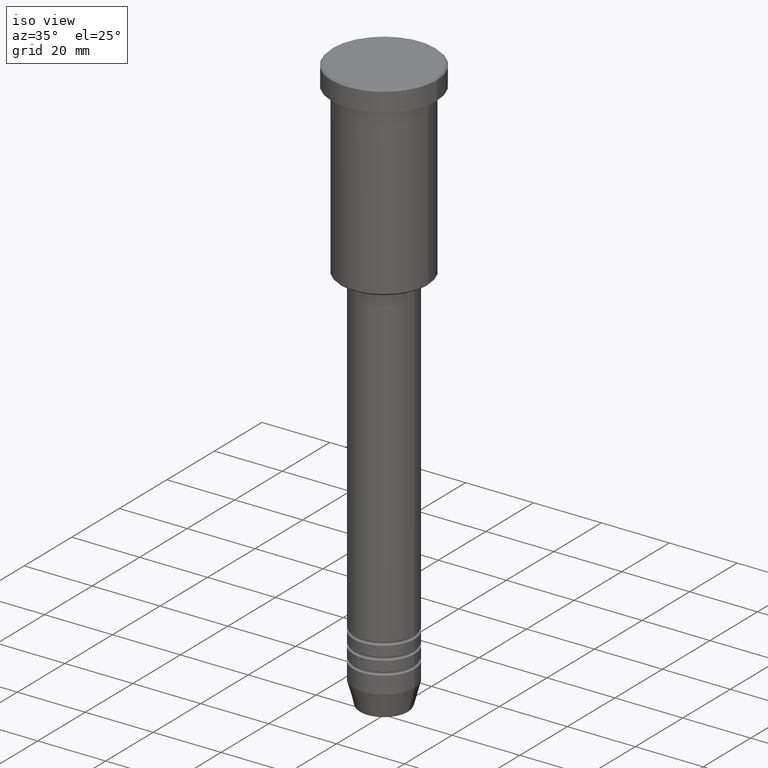
[diagram: clean part render]
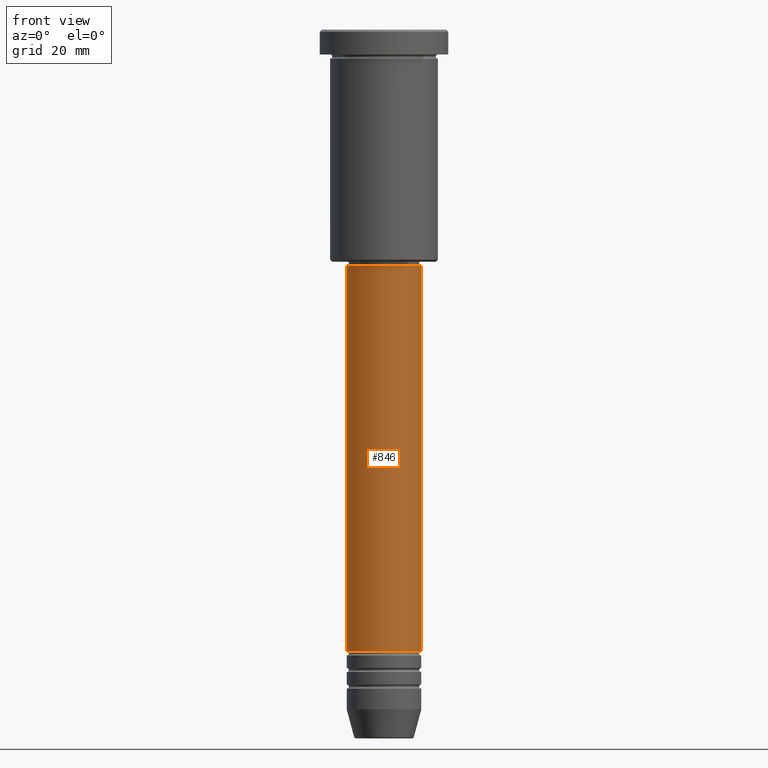
[diagram: tour spotlight — one face highlighted and labeled with its STEP entity id]
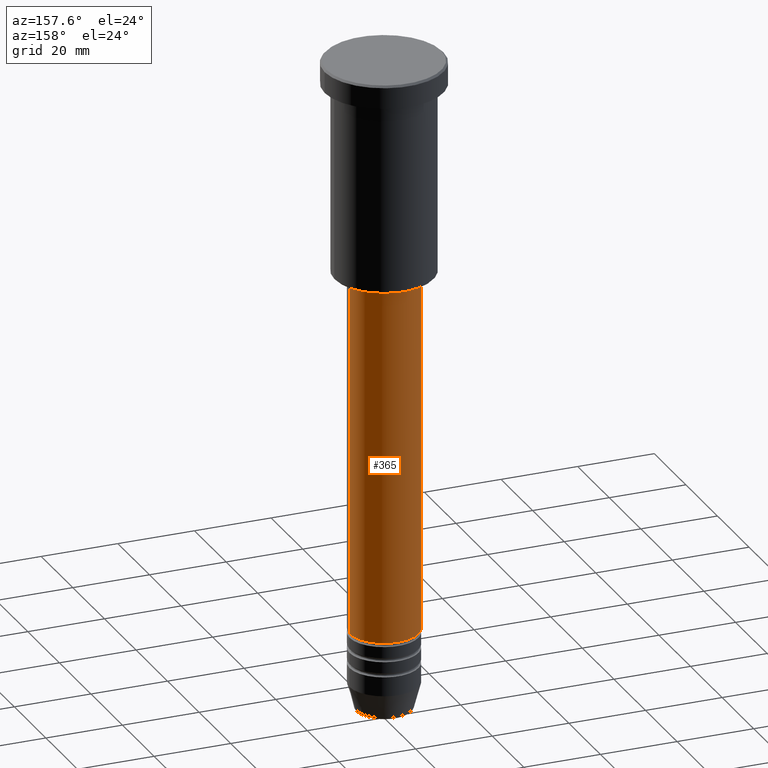
[diagram: tour spotlight — one face highlighted and labeled with its STEP entity id]
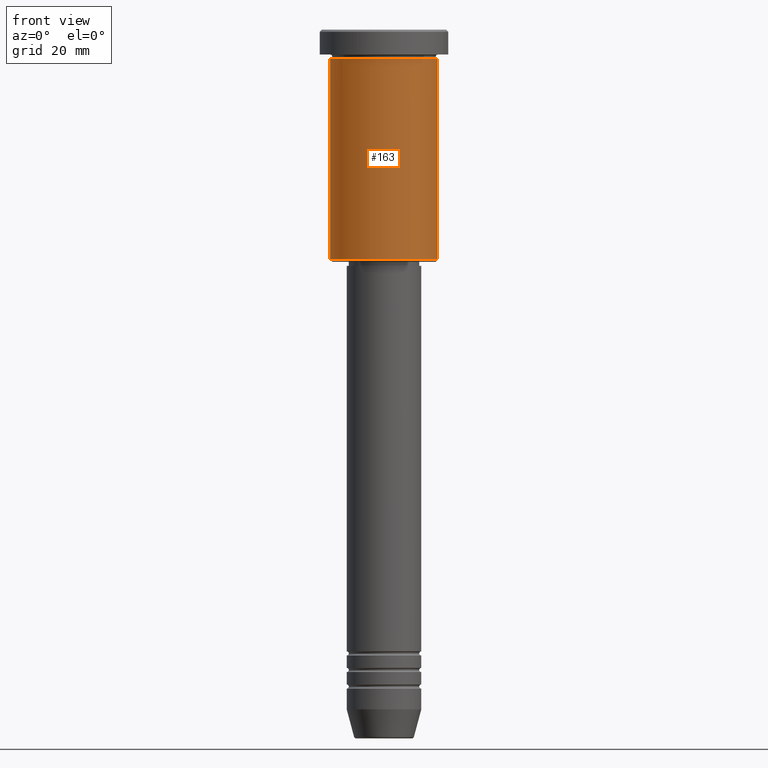
[diagram: tour spotlight — one face highlighted and labeled with its STEP entity id]
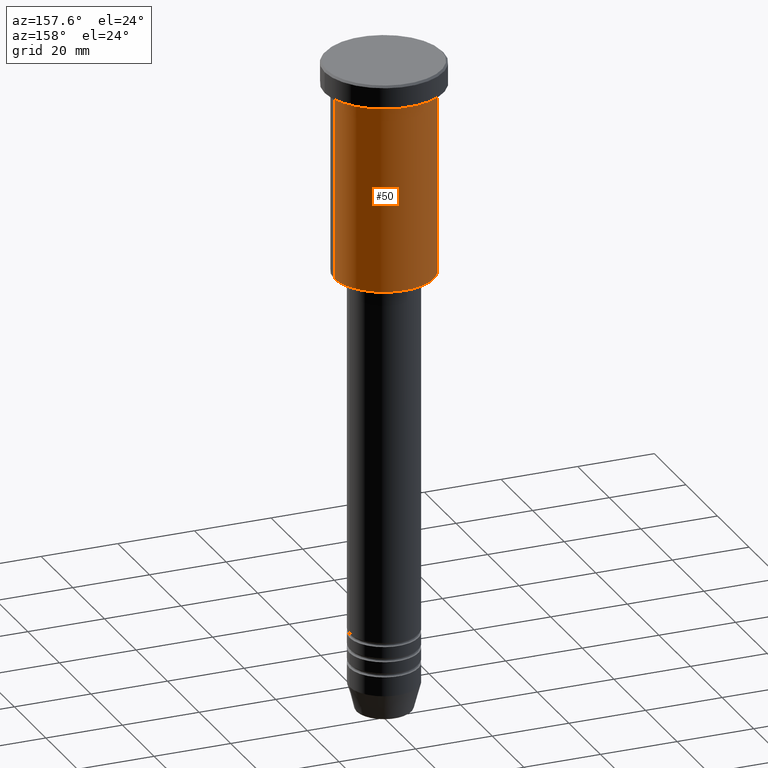
[diagram: tour spotlight — one face highlighted and labeled with its STEP entity id]
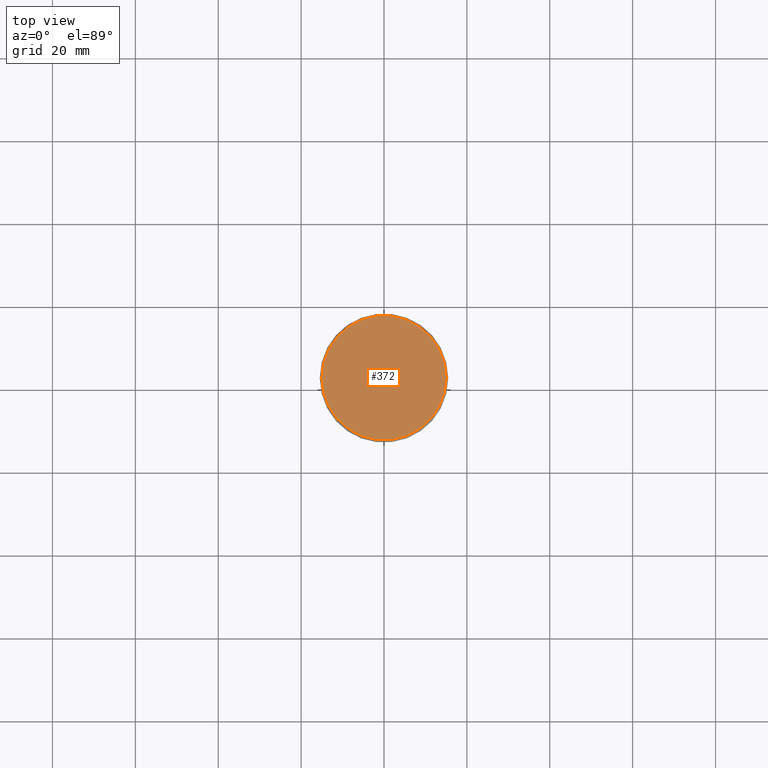
[diagram: tour spotlight — one face highlighted and labeled with its STEP entity id]
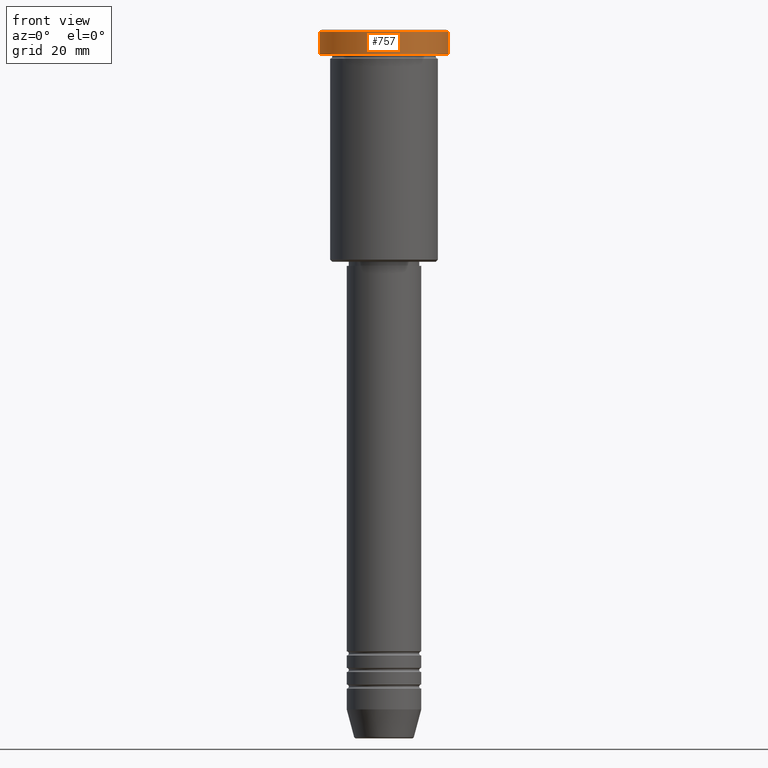
[diagram: tour spotlight — one face highlighted and labeled with its STEP entity id]
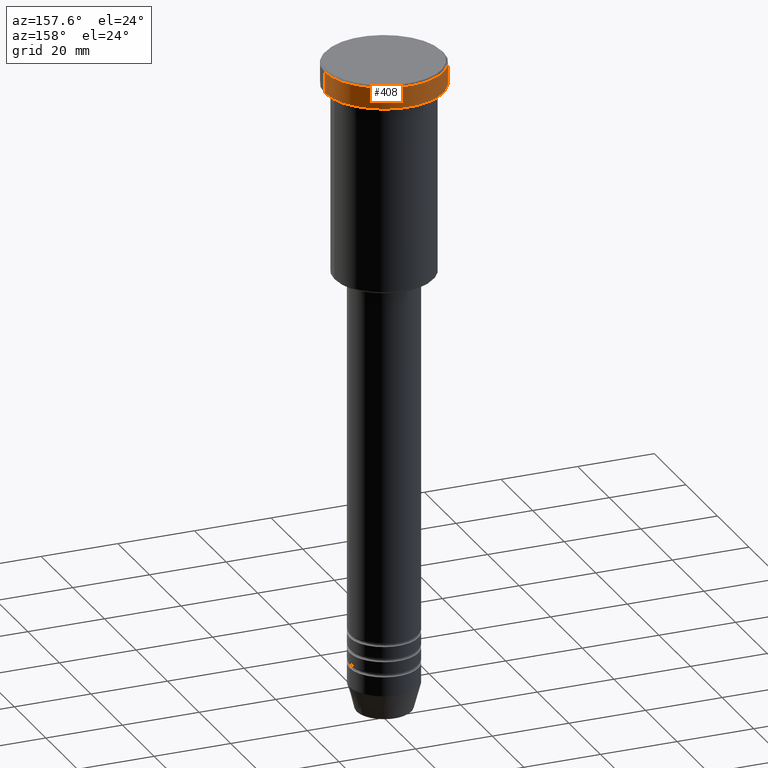
[diagram: tour spotlight — one face highlighted and labeled with its STEP entity id]
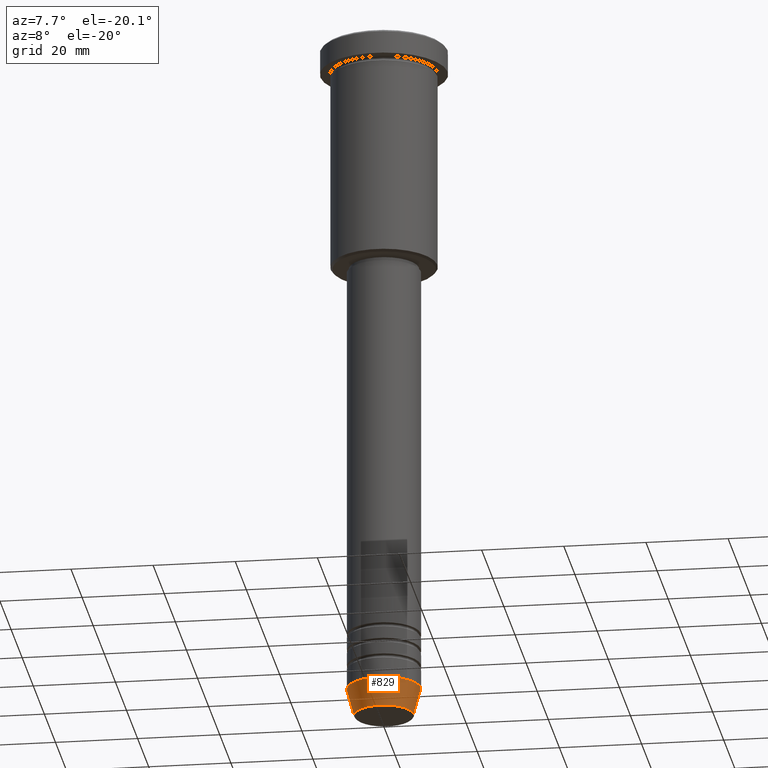
[diagram: tour spotlight — one face highlighted and labeled with its STEP entity id]
A machine part: a face-by-face anatomy tour. The part has 43 B-rep faces; the first image is the clean iso view, then the 8 largest visible faces are spotlighted one at a time (largest first), each with its STEP entity span.

Face 1 — front view, entity #846. In plain terms, the highlighted cylindrical surface (partial cylindrical patch) has radius 9 mm, axis along (-0, -0, 1).
Definition (entity closure, byte-faithful):
#19 = CARTESIAN_POINT ( 'NONE',  ( 8.999999999999998224, 0.000000000000000000, -56.99999999999998579 ) ) ;
#35 = DIRECTION ( 'NONE',  ( -0.000000000000000000, -0.000000000000000000, 1.000000000000000000 ) ) ;
#47 = AXIS2_PLACEMENT_3D ( 'NONE', #1069, #871, #64 ) ;
#54 = DIRECTION ( 'NONE',  ( -0.000000000000000000, -0.000000000000000000, 1.000000000000000000 ) ) ;
#59 = LINE ( 'NONE', #501, #267 ) ;
#60 = CARTESIAN_POINT ( 'NONE',  ( 0.000000000000000000, 0.000000000000000000, -56.99999999999998579 ) ) ;
#64 = DIRECTION ( 'NONE',  ( 1.000000000000000000, 0.000000000000000000, 0.000000000000000000 ) ) ;
#105 = CARTESIAN_POINT ( 'NONE',  ( 9.000000000000001776, 0.000000000000000000, -149.9999999999999147 ) ) ;
#240 = DIRECTION ( 'NONE',  ( -0.000000000000000000, -0.000000000000000000, 1.000000000000000000 ) ) ;
#267 = VECTOR ( 'NONE', #240, 1000.000000000000000 ) ;
#272 = VERTEX_POINT ( 'NONE', #1083 ) ;
#329 = CARTESIAN_POINT ( 'NONE',  ( 9.000000000000000000, 0.000000000000000000, 0.000000000000000000 ) ) ;
#359 = CIRCLE ( 'NONE', #548, 9.000000000000001776 ) ;
#402 = FACE_OUTER_BOUND ( 'NONE', #965, .T. ) ;
#428 = ORIENTED_EDGE ( 'NONE', *, *, #734, .T. ) ;
#435 = CIRCLE ( 'NONE', #665, 8.999999999999998224 ) ;
#452 = VECTOR ( 'NONE', #882, 1000.000000000000000 ) ;
#474 = ORIENTED_EDGE ( 'NONE', *, *, #823, .F. ) ;
#501 = CARTESIAN_POINT ( 'NONE',  ( -9.000000000000000000, 1.102182119232617714E-15, 0.000000000000000000 ) ) ;
#516 = CYLINDRICAL_SURFACE ( 'NONE', #47, 9.000000000000000000 ) ;
#521 = ORIENTED_EDGE ( 'NONE', *, *, #550, .F. ) ;
#548 = AXIS2_PLACEMENT_3D ( 'NONE', #576, #35, #933 ) ;
#550 = EDGE_CURVE ( 'NONE', #960, #1093, #435, .T. ) ;
#576 = CARTESIAN_POINT ( 'NONE',  ( 0.000000000000000000, 0.000000000000000000, -149.9999999999999147 ) ) ;
#596 = DIRECTION ( 'NONE',  ( 1.000000000000000000, 0.000000000000000000, 0.000000000000000000 ) ) ;
#665 = AXIS2_PLACEMENT_3D ( 'NONE', #60, #54, #596 ) ;
#734 = EDGE_CURVE ( 'NONE', #272, #974, #359, .T. ) ;
#809 = CARTESIAN_POINT ( 'NONE',  ( -8.999999999999998224, 1.102182119232617714E-15, -56.99999999999998579 ) ) ;
#823 = EDGE_CURVE ( 'NONE', #272, #960, #59, .T. ) ;
#846 = ADVANCED_FACE ( 'NONE', ( #402 ), #516, .T. ) ;
#871 = DIRECTION ( 'NONE',  ( -0.000000000000000000, -0.000000000000000000, 1.000000000000000000 ) ) ;
#872 = EDGE_CURVE ( 'NONE', #974, #1093, #967, .T. ) ;
#882 = DIRECTION ( 'NONE',  ( -0.000000000000000000, -0.000000000000000000, 1.000000000000000000 ) ) ;
#933 = DIRECTION ( 'NONE',  ( 1.000000000000000000, 0.000000000000000000, 0.000000000000000000 ) ) ;
#960 = VERTEX_POINT ( 'NONE', #809 ) ;
#965 = EDGE_LOOP ( 'NONE', ( #474, #428, #1022, #521 ) ) ;
#967 = LINE ( 'NONE', #329, #452 ) ;
#974 = VERTEX_POINT ( 'NONE', #105 ) ;
#1022 = ORIENTED_EDGE ( 'NONE', *, *, #872, .T. ) ;
#1069 = CARTESIAN_POINT ( 'NONE',  ( 0.000000000000000000, 0.000000000000000000, 0.000000000000000000 ) ) ;
#1083 = CARTESIAN_POINT ( 'NONE',  ( -9.000000000000001776, 1.102182119232617911E-15, -149.9999999999999147 ) ) ;
#1093 = VERTEX_POINT ( 'NONE', #19 ) ;

Face 2 — auxiliary view, entity #365. In plain terms, the highlighted cylindrical surface (partial cylindrical patch) has radius 9 mm, axis along (-0, -0, 1).
Definition (entity closure, byte-faithful):
#18 = EDGE_LOOP ( 'NONE', ( #515, #643, #981, #640 ) ) ;
#19 = CARTESIAN_POINT ( 'NONE',  ( 8.999999999999998224, 0.000000000000000000, -56.99999999999998579 ) ) ;
#59 = LINE ( 'NONE', #501, #267 ) ;
#105 = CARTESIAN_POINT ( 'NONE',  ( 9.000000000000001776, 0.000000000000000000, -149.9999999999999147 ) ) ;
#240 = DIRECTION ( 'NONE',  ( -0.000000000000000000, -0.000000000000000000, 1.000000000000000000 ) ) ;
#248 = CIRCLE ( 'NONE', #743, 8.999999999999998224 ) ;
#254 = DIRECTION ( 'NONE',  ( -0.000000000000000000, -0.000000000000000000, 1.000000000000000000 ) ) ;
#267 = VECTOR ( 'NONE', #240, 1000.000000000000000 ) ;
#272 = VERTEX_POINT ( 'NONE', #1083 ) ;
#329 = CARTESIAN_POINT ( 'NONE',  ( 9.000000000000000000, 0.000000000000000000, 0.000000000000000000 ) ) ;
#339 = AXIS2_PLACEMENT_3D ( 'NONE', #745, #850, #387 ) ;
#362 = EDGE_CURVE ( 'NONE', #974, #272, #836, .T. ) ;
#365 = ADVANCED_FACE ( 'NONE', ( #390 ), #658, .T. ) ;
#387 = DIRECTION ( 'NONE',  ( 1.000000000000000000, 0.000000000000000000, 0.000000000000000000 ) ) ;
#390 = FACE_OUTER_BOUND ( 'NONE', #18, .T. ) ;
#452 = VECTOR ( 'NONE', #882, 1000.000000000000000 ) ;
#469 = DIRECTION ( 'NONE',  ( -0.000000000000000000, -0.000000000000000000, 1.000000000000000000 ) ) ;
#501 = CARTESIAN_POINT ( 'NONE',  ( -9.000000000000000000, 1.102182119232617714E-15, 0.000000000000000000 ) ) ;
#515 = ORIENTED_EDGE ( 'NONE', *, *, #362, .T. ) ;
#629 = EDGE_CURVE ( 'NONE', #1093, #960, #248, .T. ) ;
#640 = ORIENTED_EDGE ( 'NONE', *, *, #872, .F. ) ;
#643 = ORIENTED_EDGE ( 'NONE', *, *, #823, .T. ) ;
#658 = CYLINDRICAL_SURFACE ( 'NONE', #1048, 9.000000000000000000 ) ;
#743 = AXIS2_PLACEMENT_3D ( 'NONE', #1079, #254, #948 ) ;
#745 = CARTESIAN_POINT ( 'NONE',  ( 0.000000000000000000, 0.000000000000000000, -149.9999999999999147 ) ) ;
#809 = CARTESIAN_POINT ( 'NONE',  ( -8.999999999999998224, 1.102182119232617714E-15, -56.99999999999998579 ) ) ;
#823 = EDGE_CURVE ( 'NONE', #272, #960, #59, .T. ) ;
#833 = CARTESIAN_POINT ( 'NONE',  ( 0.000000000000000000, 0.000000000000000000, 0.000000000000000000 ) ) ;
#836 = CIRCLE ( 'NONE', #339, 9.000000000000001776 ) ;
#850 = DIRECTION ( 'NONE',  ( -0.000000000000000000, -0.000000000000000000, 1.000000000000000000 ) ) ;
#872 = EDGE_CURVE ( 'NONE', #974, #1093, #967, .T. ) ;
#882 = DIRECTION ( 'NONE',  ( -0.000000000000000000, -0.000000000000000000, 1.000000000000000000 ) ) ;
#939 = DIRECTION ( 'NONE',  ( 1.000000000000000000, 0.000000000000000000, 0.000000000000000000 ) ) ;
#948 = DIRECTION ( 'NONE',  ( 1.000000000000000000, 0.000000000000000000, 0.000000000000000000 ) ) ;
#960 = VERTEX_POINT ( 'NONE', #809 ) ;
#967 = LINE ( 'NONE', #329, #452 ) ;
#974 = VERTEX_POINT ( 'NONE', #105 ) ;
#981 = ORIENTED_EDGE ( 'NONE', *, *, #629, .F. ) ;
#1048 = AXIS2_PLACEMENT_3D ( 'NONE', #833, #469, #939 ) ;
#1079 = CARTESIAN_POINT ( 'NONE',  ( 0.000000000000000000, 0.000000000000000000, -56.99999999999998579 ) ) ;
#1083 = CARTESIAN_POINT ( 'NONE',  ( -9.000000000000001776, 1.102182119232617911E-15, -149.9999999999999147 ) ) ;
#1093 = VERTEX_POINT ( 'NONE', #19 ) ;

Face 3 — front view, entity #163. In plain terms, the highlighted cylindrical surface (partial cylindrical patch) has radius 13 mm, axis along (-0, -0, 1).
Definition (entity closure, byte-faithful):
#25 = CARTESIAN_POINT ( 'NONE',  ( 0.000000000000000000, 0.000000000000000000, -6.999999999999995559 ) ) ;
#75 = DIRECTION ( 'NONE',  ( -0.000000000000000000, -0.000000000000000000, 1.000000000000000000 ) ) ;
#76 = EDGE_CURVE ( 'NONE', #865, #954, #719, .T. ) ;
#90 = ORIENTED_EDGE ( 'NONE', *, *, #551, .T. ) ;
#150 = VECTOR ( 'NONE', #727, 1000.000000000000000 ) ;
#163 = ADVANCED_FACE ( 'NONE', ( #971 ), #601, .T. ) ;
#205 = AXIS2_PLACEMENT_3D ( 'NONE', #25, #377, #732 ) ;
#238 = EDGE_CURVE ( 'NONE', #443, #865, #1098, .T. ) ;
#301 = VERTEX_POINT ( 'NONE', #814 ) ;
#318 = LINE ( 'NONE', #1071, #685 ) ;
#346 = DIRECTION ( 'NONE',  ( 1.000000000000000000, 0.000000000000000000, 0.000000000000000000 ) ) ;
#377 = DIRECTION ( 'NONE',  ( -0.000000000000000000, -0.000000000000000000, 1.000000000000000000 ) ) ;
#381 = CARTESIAN_POINT ( 'NONE',  ( -13.00000000000000178, 1.592040838891559293E-15, -55.49999999999995737 ) ) ;
#423 = DIRECTION ( 'NONE',  ( -1.000000000000000000, 0.000000000000000000, 0.000000000000000000 ) ) ;
#443 = VERTEX_POINT ( 'NONE', #381 ) ;
#551 = EDGE_CURVE ( 'NONE', #443, #301, #840, .T. ) ;
#572 = EDGE_CURVE ( 'NONE', #301, #954, #318, .T. ) ;
#575 = ORIENTED_EDGE ( 'NONE', *, *, #238, .F. ) ;
#588 = AXIS2_PLACEMENT_3D ( 'NONE', #591, #787, #423 ) ;
#591 = CARTESIAN_POINT ( 'NONE',  ( 0.000000000000000000, 0.000000000000000000, -55.49999999999995737 ) ) ;
#601 = CYLINDRICAL_SURFACE ( 'NONE', #642, 13.00000000000000178 ) ;
#610 = DIRECTION ( 'NONE',  ( -0.000000000000000000, -0.000000000000000000, 1.000000000000000000 ) ) ;
#634 = CARTESIAN_POINT ( 'NONE',  ( -13.00000000000000178, 1.592040838891559293E-15, 0.000000000000000000 ) ) ;
#642 = AXIS2_PLACEMENT_3D ( 'NONE', #892, #75, #346 ) ;
#685 = VECTOR ( 'NONE', #610, 1000.000000000000000 ) ;
#719 = CIRCLE ( 'NONE', #205, 13.00000000000000178 ) ;
#727 = DIRECTION ( 'NONE',  ( -0.000000000000000000, -0.000000000000000000, 1.000000000000000000 ) ) ;
#732 = DIRECTION ( 'NONE',  ( 1.000000000000000000, 0.000000000000000000, 0.000000000000000000 ) ) ;
#787 = DIRECTION ( 'NONE',  ( -0.000000000000000000, -0.000000000000000000, 1.000000000000000000 ) ) ;
#796 = ORIENTED_EDGE ( 'NONE', *, *, #76, .F. ) ;
#814 = CARTESIAN_POINT ( 'NONE',  ( 13.00000000000000178, 0.000000000000000000, -55.49999999999995737 ) ) ;
#837 = ORIENTED_EDGE ( 'NONE', *, *, #572, .T. ) ;
#840 = CIRCLE ( 'NONE', #588, 13.00000000000000178 ) ;
#865 = VERTEX_POINT ( 'NONE', #1047 ) ;
#870 = EDGE_LOOP ( 'NONE', ( #575, #90, #837, #796 ) ) ;
#892 = CARTESIAN_POINT ( 'NONE',  ( 0.000000000000000000, 0.000000000000000000, 0.000000000000000000 ) ) ;
#954 = VERTEX_POINT ( 'NONE', #1091 ) ;
#971 = FACE_OUTER_BOUND ( 'NONE', #870, .T. ) ;
#1047 = CARTESIAN_POINT ( 'NONE',  ( -13.00000000000000178, 1.592040838891559293E-15, -6.999999999999995559 ) ) ;
#1071 = CARTESIAN_POINT ( 'NONE',  ( 13.00000000000000178, 0.000000000000000000, 0.000000000000000000 ) ) ;
#1091 = CARTESIAN_POINT ( 'NONE',  ( 13.00000000000000178, 0.000000000000000000, -6.999999999999995559 ) ) ;
#1098 = LINE ( 'NONE', #634, #150 ) ;

Face 4 — auxiliary view, entity #50. In plain terms, the highlighted cylindrical surface (partial cylindrical patch) has radius 13 mm, axis along (-0, -0, 1).
Definition (entity closure, byte-faithful):
#6 = AXIS2_PLACEMENT_3D ( 'NONE', #786, #407, #78 ) ;
#50 = ADVANCED_FACE ( 'NONE', ( #635 ), #1105, .T. ) ;
#67 = CIRCLE ( 'NONE', #764, 13.00000000000000178 ) ;
#78 = DIRECTION ( 'NONE',  ( 1.000000000000000000, 0.000000000000000000, 0.000000000000000000 ) ) ;
#83 = EDGE_LOOP ( 'NONE', ( #252, #705, #995, #721 ) ) ;
#150 = VECTOR ( 'NONE', #727, 1000.000000000000000 ) ;
#238 = EDGE_CURVE ( 'NONE', #443, #865, #1098, .T. ) ;
#252 = ORIENTED_EDGE ( 'NONE', *, *, #659, .T. ) ;
#287 = CARTESIAN_POINT ( 'NONE',  ( 0.000000000000000000, 0.000000000000000000, 0.000000000000000000 ) ) ;
#301 = VERTEX_POINT ( 'NONE', #814 ) ;
#318 = LINE ( 'NONE', #1071, #685 ) ;
#381 = CARTESIAN_POINT ( 'NONE',  ( -13.00000000000000178, 1.592040838891559293E-15, -55.49999999999995737 ) ) ;
#407 = DIRECTION ( 'NONE',  ( -0.000000000000000000, -0.000000000000000000, 1.000000000000000000 ) ) ;
#443 = VERTEX_POINT ( 'NONE', #381 ) ;
#463 = DIRECTION ( 'NONE',  ( -0.000000000000000000, -0.000000000000000000, 1.000000000000000000 ) ) ;
#479 = DIRECTION ( 'NONE',  ( -0.000000000000000000, -0.000000000000000000, 1.000000000000000000 ) ) ;
#572 = EDGE_CURVE ( 'NONE', #301, #954, #318, .T. ) ;
#589 = CIRCLE ( 'NONE', #6, 13.00000000000000178 ) ;
#610 = DIRECTION ( 'NONE',  ( -0.000000000000000000, -0.000000000000000000, 1.000000000000000000 ) ) ;
#634 = CARTESIAN_POINT ( 'NONE',  ( -13.00000000000000178, 1.592040838891559293E-15, 0.000000000000000000 ) ) ;
#635 = FACE_OUTER_BOUND ( 'NONE', #83, .T. ) ;
#659 = EDGE_CURVE ( 'NONE', #301, #443, #67, .T. ) ;
#685 = VECTOR ( 'NONE', #610, 1000.000000000000000 ) ;
#705 = ORIENTED_EDGE ( 'NONE', *, *, #238, .T. ) ;
#721 = ORIENTED_EDGE ( 'NONE', *, *, #572, .F. ) ;
#727 = DIRECTION ( 'NONE',  ( -0.000000000000000000, -0.000000000000000000, 1.000000000000000000 ) ) ;
#764 = AXIS2_PLACEMENT_3D ( 'NONE', #1116, #479, #1129 ) ;
#786 = CARTESIAN_POINT ( 'NONE',  ( 0.000000000000000000, 0.000000000000000000, -6.999999999999995559 ) ) ;
#814 = CARTESIAN_POINT ( 'NONE',  ( 13.00000000000000178, 0.000000000000000000, -55.49999999999995737 ) ) ;
#838 = EDGE_CURVE ( 'NONE', #954, #865, #589, .T. ) ;
#865 = VERTEX_POINT ( 'NONE', #1047 ) ;
#873 = AXIS2_PLACEMENT_3D ( 'NONE', #287, #463, #1007 ) ;
#954 = VERTEX_POINT ( 'NONE', #1091 ) ;
#995 = ORIENTED_EDGE ( 'NONE', *, *, #838, .F. ) ;
#1007 = DIRECTION ( 'NONE',  ( 1.000000000000000000, 0.000000000000000000, 0.000000000000000000 ) ) ;
#1047 = CARTESIAN_POINT ( 'NONE',  ( -13.00000000000000178, 1.592040838891559293E-15, -6.999999999999995559 ) ) ;
#1071 = CARTESIAN_POINT ( 'NONE',  ( 13.00000000000000178, 0.000000000000000000, 0.000000000000000000 ) ) ;
#1091 = CARTESIAN_POINT ( 'NONE',  ( 13.00000000000000178, 0.000000000000000000, -6.999999999999995559 ) ) ;
#1098 = LINE ( 'NONE', #634, #150 ) ;
#1105 = CYLINDRICAL_SURFACE ( 'NONE', #873, 13.00000000000000178 ) ;
#1116 = CARTESIAN_POINT ( 'NONE',  ( 0.000000000000000000, 0.000000000000000000, -55.49999999999995737 ) ) ;
#1129 = DIRECTION ( 'NONE',  ( -1.000000000000000000, 0.000000000000000000, 0.000000000000000000 ) ) ;

Face 5 — top view, entity #372. In plain terms, the highlighted planar face has unit normal (0, -0, 1).
Definition (entity closure, byte-faithful):
#40 = FACE_OUTER_BOUND ( 'NONE', #1142, .T. ) ;
#179 = CARTESIAN_POINT ( 'NONE',  ( 15.00000000000001421, 1.867586368699714559E-15, 0.000000000000000000 ) ) ;
#268 = VERTEX_POINT ( 'NONE', #179 ) ;
#270 = VERTEX_POINT ( 'NONE', #810 ) ;
#372 = ADVANCED_FACE ( 'NONE', ( #40 ), #583, .T. ) ;
#416 = AXIS2_PLACEMENT_3D ( 'NONE', #904, #818, #714 ) ;
#466 = ORIENTED_EDGE ( 'NONE', *, *, #577, .T. ) ;
#567 = AXIS2_PLACEMENT_3D ( 'NONE', #1155, #968, #600 ) ;
#577 = EDGE_CURVE ( 'NONE', #270, #268, #1030, .T. ) ;
#583 = PLANE ( 'NONE',  #1104 ) ;
#600 = DIRECTION ( 'NONE',  ( 1.000000000000000000, 0.000000000000000000, 0.000000000000000000 ) ) ;
#628 = CIRCLE ( 'NONE', #416, 15.00000000000001421 ) ;
#662 = ORIENTED_EDGE ( 'NONE', *, *, #959, .T. ) ;
#714 = DIRECTION ( 'NONE',  ( 1.000000000000000000, 0.000000000000000000, 0.000000000000000000 ) ) ;
#763 = DIRECTION ( 'NONE',  ( 1.000000000000000000, 0.000000000000000000, 0.000000000000000000 ) ) ;
#810 = CARTESIAN_POINT ( 'NONE',  ( -15.00000000000001421, 0.000000000000000000, 0.000000000000000000 ) ) ;
#818 = DIRECTION ( 'NONE',  ( -0.000000000000000000, -0.000000000000000000, 1.000000000000000000 ) ) ;
#904 = CARTESIAN_POINT ( 'NONE',  ( 0.000000000000000000, 0.000000000000000000, 0.000000000000000000 ) ) ;
#959 = EDGE_CURVE ( 'NONE', #268, #270, #628, .T. ) ;
#968 = DIRECTION ( 'NONE',  ( -0.000000000000000000, -0.000000000000000000, 1.000000000000000000 ) ) ;
#1030 = CIRCLE ( 'NONE', #567, 15.00000000000001421 ) ;
#1044 = CARTESIAN_POINT ( 'NONE',  ( 0.000000000000000000, 0.000000000000000000, 0.000000000000000000 ) ) ;
#1104 = AXIS2_PLACEMENT_3D ( 'NONE', #1044, #1112, #763 ) ;
#1112 = DIRECTION ( 'NONE',  ( 0.000000000000000000, -0.000000000000000000, 1.000000000000000000 ) ) ;
#1142 = EDGE_LOOP ( 'NONE', ( #466, #662 ) ) ;
#1155 = CARTESIAN_POINT ( 'NONE',  ( 0.000000000000000000, 0.000000000000000000, 0.000000000000000000 ) ) ;

Face 6 — front view, entity #757. In plain terms, the highlighted cylindrical surface (partial cylindrical patch) has radius 15.5 mm, axis along (-0, -0, 1).
Definition (entity closure, byte-faithful):
#30 = CARTESIAN_POINT ( 'NONE',  ( 0.000000000000000000, 0.000000000000000000, 0.000000000000000000 ) ) ;
#93 = CARTESIAN_POINT ( 'NONE',  ( 15.50000000000000000, 0.000000000000000000, -0.4999999999999848455 ) ) ;
#101 = CIRCLE ( 'NONE', #1167, 15.50000000000000000 ) ;
#110 = VERTEX_POINT ( 'NONE', #962 ) ;
#122 = DIRECTION ( 'NONE',  ( -0.000000000000000000, -0.000000000000000000, 1.000000000000000000 ) ) ;
#128 = EDGE_LOOP ( 'NONE', ( #1036, #979, #539, #795 ) ) ;
#145 = CARTESIAN_POINT ( 'NONE',  ( 15.50000000000000000, 0.000000000000000000, 0.000000000000000000 ) ) ;
#229 = VERTEX_POINT ( 'NONE', #93 ) ;
#281 = CYLINDRICAL_SURFACE ( 'NONE', #724, 15.50000000000000000 ) ;
#288 = CARTESIAN_POINT ( 'NONE',  ( -15.50000000000000000, 1.898202538678397557E-15, 0.000000000000000000 ) ) ;
#321 = AXIS2_PLACEMENT_3D ( 'NONE', #867, #409, #716 ) ;
#409 = DIRECTION ( 'NONE',  ( 0.000000000000000000, 0.000000000000000000, -1.000000000000000000 ) ) ;
#459 = VERTEX_POINT ( 'NONE', #480 ) ;
#473 = LINE ( 'NONE', #288, #912 ) ;
#480 = CARTESIAN_POINT ( 'NONE',  ( 15.50000000000000000, 0.000000000000000000, -5.999999999999995559 ) ) ;
#499 = EDGE_CURVE ( 'NONE', #110, #459, #101, .T. ) ;
#507 = CARTESIAN_POINT ( 'NONE',  ( -15.50000000000000000, 1.898202538678397557E-15, -0.4999999999999848455 ) ) ;
#508 = DIRECTION ( 'NONE',  ( -0.000000000000000000, -0.000000000000000000, 1.000000000000000000 ) ) ;
#525 = EDGE_CURVE ( 'NONE', #459, #229, #1058, .T. ) ;
#539 = ORIENTED_EDGE ( 'NONE', *, *, #525, .T. ) ;
#630 = EDGE_CURVE ( 'NONE', #229, #845, #645, .T. ) ;
#645 = CIRCLE ( 'NONE', #321, 15.50000000000000000 ) ;
#681 = DIRECTION ( 'NONE',  ( 1.000000000000000000, 0.000000000000000000, 0.000000000000000000 ) ) ;
#716 = DIRECTION ( 'NONE',  ( 1.000000000000000000, 0.000000000000000000, 0.000000000000000000 ) ) ;
#724 = AXIS2_PLACEMENT_3D ( 'NONE', #30, #122, #749 ) ;
#749 = DIRECTION ( 'NONE',  ( 1.000000000000000000, 0.000000000000000000, 0.000000000000000000 ) ) ;
#757 = ADVANCED_FACE ( 'NONE', ( #769 ), #281, .T. ) ;
#769 = FACE_OUTER_BOUND ( 'NONE', #128, .T. ) ;
#795 = ORIENTED_EDGE ( 'NONE', *, *, #630, .T. ) ;
#835 = DIRECTION ( 'NONE',  ( -0.000000000000000000, -0.000000000000000000, 1.000000000000000000 ) ) ;
#845 = VERTEX_POINT ( 'NONE', #507 ) ;
#863 = CARTESIAN_POINT ( 'NONE',  ( 0.000000000000000000, 0.000000000000000000, -5.999999999999995559 ) ) ;
#867 = CARTESIAN_POINT ( 'NONE',  ( 0.000000000000000000, 0.000000000000000000, -0.4999999999999848455 ) ) ;
#883 = DIRECTION ( 'NONE',  ( -0.000000000000000000, -0.000000000000000000, 1.000000000000000000 ) ) ;
#912 = VECTOR ( 'NONE', #835, 1000.000000000000000 ) ;
#962 = CARTESIAN_POINT ( 'NONE',  ( -15.50000000000000000, 1.898202538678397557E-15, -5.999999999999995559 ) ) ;
#979 = ORIENTED_EDGE ( 'NONE', *, *, #499, .T. ) ;
#1036 = ORIENTED_EDGE ( 'NONE', *, *, #1088, .F. ) ;
#1058 = LINE ( 'NONE', #145, #1106 ) ;
#1088 = EDGE_CURVE ( 'NONE', #110, #845, #473, .T. ) ;
#1106 = VECTOR ( 'NONE', #508, 1000.000000000000000 ) ;
#1167 = AXIS2_PLACEMENT_3D ( 'NONE', #863, #883, #681 ) ;

Face 7 — auxiliary view, entity #408. In plain terms, the highlighted cylindrical surface (partial cylindrical patch) has radius 15.5 mm, axis along (-0, -0, 1).
Definition (entity closure, byte-faithful):
#93 = CARTESIAN_POINT ( 'NONE',  ( 15.50000000000000000, 0.000000000000000000, -0.4999999999999848455 ) ) ;
#110 = VERTEX_POINT ( 'NONE', #962 ) ;
#145 = CARTESIAN_POINT ( 'NONE',  ( 15.50000000000000000, 0.000000000000000000, 0.000000000000000000 ) ) ;
#176 = DIRECTION ( 'NONE',  ( 1.000000000000000000, 0.000000000000000000, 0.000000000000000000 ) ) ;
#216 = EDGE_LOOP ( 'NONE', ( #615, #594, #257, #559 ) ) ;
#219 = CARTESIAN_POINT ( 'NONE',  ( 0.000000000000000000, 0.000000000000000000, -0.4999999999999848455 ) ) ;
#229 = VERTEX_POINT ( 'NONE', #93 ) ;
#257 = ORIENTED_EDGE ( 'NONE', *, *, #400, .T. ) ;
#271 = CARTESIAN_POINT ( 'NONE',  ( 0.000000000000000000, 0.000000000000000000, -5.999999999999995559 ) ) ;
#283 = AXIS2_PLACEMENT_3D ( 'NONE', #271, #996, #176 ) ;
#288 = CARTESIAN_POINT ( 'NONE',  ( -15.50000000000000000, 1.898202538678397557E-15, 0.000000000000000000 ) ) ;
#309 = DIRECTION ( 'NONE',  ( 1.000000000000000000, 0.000000000000000000, 0.000000000000000000 ) ) ;
#333 = EDGE_CURVE ( 'NONE', #459, #110, #740, .T. ) ;
#400 = EDGE_CURVE ( 'NONE', #845, #229, #876, .T. ) ;
#408 = ADVANCED_FACE ( 'NONE', ( #561 ), #847, .T. ) ;
#459 = VERTEX_POINT ( 'NONE', #480 ) ;
#473 = LINE ( 'NONE', #288, #912 ) ;
#480 = CARTESIAN_POINT ( 'NONE',  ( 15.50000000000000000, 0.000000000000000000, -5.999999999999995559 ) ) ;
#507 = CARTESIAN_POINT ( 'NONE',  ( -15.50000000000000000, 1.898202538678397557E-15, -0.4999999999999848455 ) ) ;
#508 = DIRECTION ( 'NONE',  ( -0.000000000000000000, -0.000000000000000000, 1.000000000000000000 ) ) ;
#525 = EDGE_CURVE ( 'NONE', #459, #229, #1058, .T. ) ;
#559 = ORIENTED_EDGE ( 'NONE', *, *, #525, .F. ) ;
#561 = FACE_OUTER_BOUND ( 'NONE', #216, .T. ) ;
#565 = CARTESIAN_POINT ( 'NONE',  ( 0.000000000000000000, 0.000000000000000000, 0.000000000000000000 ) ) ;
#594 = ORIENTED_EDGE ( 'NONE', *, *, #1088, .T. ) ;
#615 = ORIENTED_EDGE ( 'NONE', *, *, #333, .T. ) ;
#740 = CIRCLE ( 'NONE', #283, 15.50000000000000000 ) ;
#835 = DIRECTION ( 'NONE',  ( -0.000000000000000000, -0.000000000000000000, 1.000000000000000000 ) ) ;
#845 = VERTEX_POINT ( 'NONE', #507 ) ;
#847 = CYLINDRICAL_SURFACE ( 'NONE', #875, 15.50000000000000000 ) ;
#855 = DIRECTION ( 'NONE',  ( 0.000000000000000000, 0.000000000000000000, -1.000000000000000000 ) ) ;
#875 = AXIS2_PLACEMENT_3D ( 'NONE', #565, #926, #935 ) ;
#876 = CIRCLE ( 'NONE', #931, 15.50000000000000000 ) ;
#912 = VECTOR ( 'NONE', #835, 1000.000000000000000 ) ;
#926 = DIRECTION ( 'NONE',  ( -0.000000000000000000, -0.000000000000000000, 1.000000000000000000 ) ) ;
#931 = AXIS2_PLACEMENT_3D ( 'NONE', #219, #855, #309 ) ;
#935 = DIRECTION ( 'NONE',  ( 1.000000000000000000, 0.000000000000000000, 0.000000000000000000 ) ) ;
#962 = CARTESIAN_POINT ( 'NONE',  ( -15.50000000000000000, 1.898202538678397557E-15, -5.999999999999995559 ) ) ;
#996 = DIRECTION ( 'NONE',  ( -0.000000000000000000, -0.000000000000000000, 1.000000000000000000 ) ) ;
#1058 = LINE ( 'NONE', #145, #1106 ) ;
#1088 = EDGE_CURVE ( 'NONE', #110, #845, #473, .T. ) ;
#1106 = VECTOR ( 'NONE', #508, 1000.000000000000000 ) ;

Face 8 — auxiliary view, entity #829. In plain terms, the highlighted conical surface has half-angle 15 deg.
Definition (entity closure, byte-faithful):
#139 = DIRECTION ( 'NONE',  ( -0.000000000000000000, -0.000000000000000000, 1.000000000000000000 ) ) ;
#151 = DIRECTION ( 'NONE',  ( 1.000000000000000000, 0.000000000000000000, 0.000000000000000000 ) ) ;
#165 = CARTESIAN_POINT ( 'NONE',  ( 0.000000000000000000, 0.000000000000000000, -164.0000000000000000 ) ) ;
#187 = CONICAL_SURFACE ( 'NONE', #285, 9.000000000000000000, 0.2617993877991500740 ) ;
#188 = ORIENTED_EDGE ( 'NONE', *, *, #739, .T. ) ;
#197 = CARTESIAN_POINT ( 'NONE',  ( 9.000000000000000000, 0.000000000000000000, -164.0000000000000000 ) ) ;
#228 = AXIS2_PLACEMENT_3D ( 'NONE', #989, #1179, #938 ) ;
#285 = AXIS2_PLACEMENT_3D ( 'NONE', #961, #139, #151 ) ;
#292 = EDGE_CURVE ( 'NONE', #903, #715, #445, .T. ) ;
#348 = DIRECTION ( 'NONE',  ( -0.000000000000000000, -0.000000000000000000, 1.000000000000000000 ) ) ;
#376 = AXIS2_PLACEMENT_3D ( 'NONE', #165, #348, #898 ) ;
#386 = DIRECTION ( 'NONE',  ( 0.2588190451025213501, 0.000000000000000000, 0.9659258262890680902 ) ) ;
#414 = ORIENTED_EDGE ( 'NONE', *, *, #638, .T. ) ;
#427 = CARTESIAN_POINT ( 'NONE',  ( -7.223655072137189492, 9.934123627281765110E-16, -170.6294095225512990 ) ) ;
#445 = LINE ( 'NONE', #1181, #683 ) ;
#446 = ORIENTED_EDGE ( 'NONE', *, *, #292, .F. ) ;
#467 = LINE ( 'NONE', #197, #626 ) ;
#471 = CIRCLE ( 'NONE', #376, 9.000000000000000000 ) ;
#540 = DIRECTION ( 'NONE',  ( -0.2588190451025213501, 3.169619151431772337E-17, 0.9659258262890680902 ) ) ;
#624 = ORIENTED_EDGE ( 'NONE', *, *, #1004, .F. ) ;
#626 = VECTOR ( 'NONE', #386, 1000.000000000000000 ) ;
#638 = EDGE_CURVE ( 'NONE', #903, #1010, #991, .T. ) ;
#683 = VECTOR ( 'NONE', #540, 1000.000000000000000 ) ;
#711 = CARTESIAN_POINT ( 'NONE',  ( 7.223655072137188604, 0.000000000000000000, -170.6294095225512990 ) ) ;
#715 = VERTEX_POINT ( 'NONE', #1011 ) ;
#739 = EDGE_CURVE ( 'NONE', #1010, #816, #467, .T. ) ;
#808 = EDGE_LOOP ( 'NONE', ( #446, #414, #188, #624 ) ) ;
#816 = VERTEX_POINT ( 'NONE', #886 ) ;
#829 = ADVANCED_FACE ( 'NONE', ( #1042 ), #187, .T. ) ;
#886 = CARTESIAN_POINT ( 'NONE',  ( 9.000000000000000000, 0.000000000000000000, -164.0000000000000000 ) ) ;
#898 = DIRECTION ( 'NONE',  ( 1.000000000000000000, 0.000000000000000000, 0.000000000000000000 ) ) ;
#903 = VERTEX_POINT ( 'NONE', #427 ) ;
#938 = DIRECTION ( 'NONE',  ( 1.000000000000000000, 0.000000000000000000, 0.000000000000000000 ) ) ;
#961 = CARTESIAN_POINT ( 'NONE',  ( 0.000000000000000000, 0.000000000000000000, -164.0000000000000000 ) ) ;
#989 = CARTESIAN_POINT ( 'NONE',  ( 0.000000000000000000, 0.000000000000000000, -170.6294095225512990 ) ) ;
#991 = CIRCLE ( 'NONE', #228, 7.223655072137188604 ) ;
#1004 = EDGE_CURVE ( 'NONE', #715, #816, #471, .T. ) ;
#1010 = VERTEX_POINT ( 'NONE', #711 ) ;
#1011 = CARTESIAN_POINT ( 'NONE',  ( -9.000000000000000000, 1.102182119232617714E-15, -164.0000000000000000 ) ) ;
#1042 = FACE_OUTER_BOUND ( 'NONE', #808, .T. ) ;
#1179 = DIRECTION ( 'NONE',  ( -0.000000000000000000, -0.000000000000000000, 1.000000000000000000 ) ) ;
#1181 = CARTESIAN_POINT ( 'NONE',  ( -9.000000000000000000, 1.102182119232617714E-15, -164.0000000000000000 ) ) ;